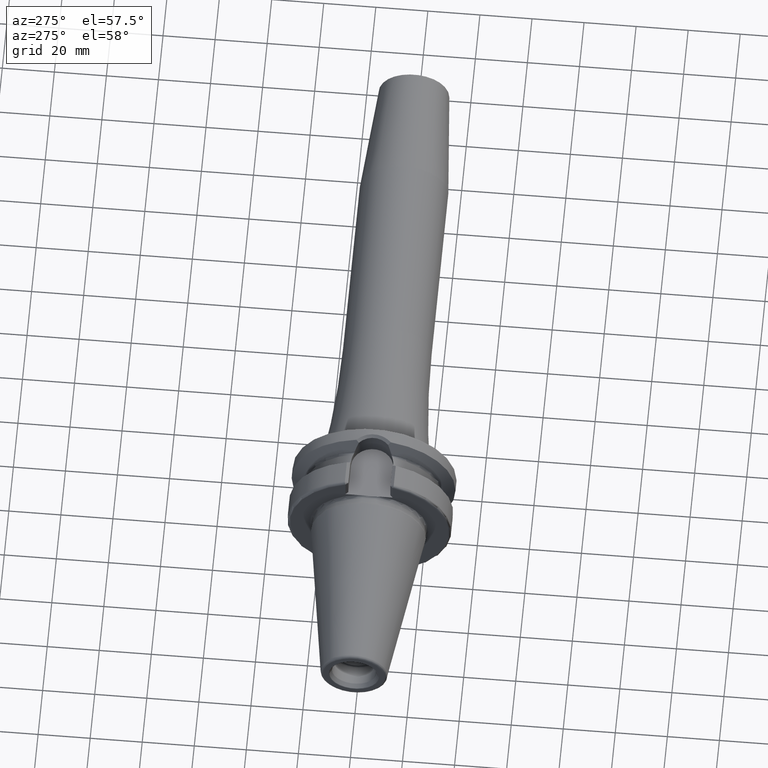
[diagram: clean part render]
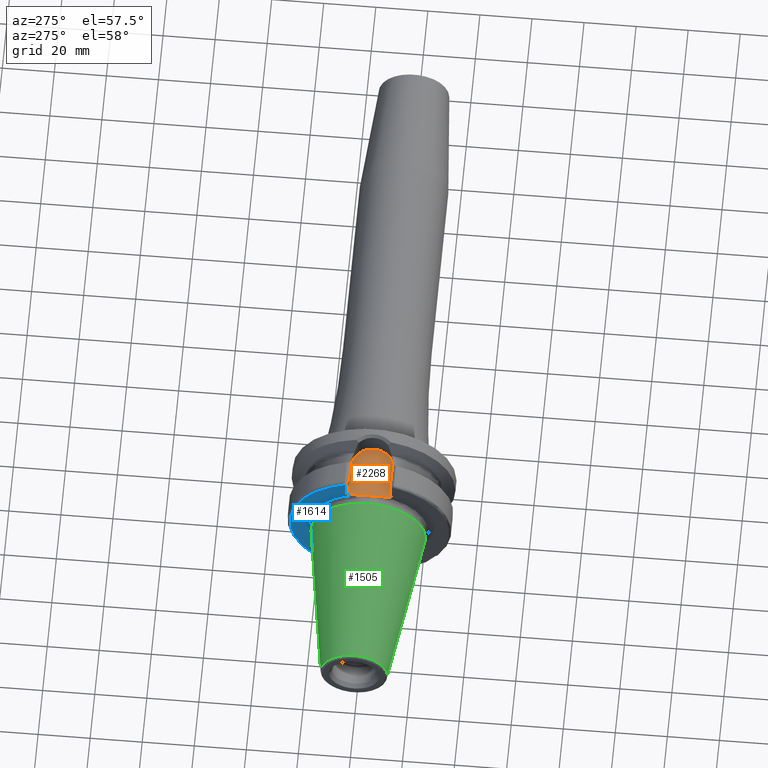
[diagram: same view with three faces highlighted in distinct colors, each labeled with its STEP entity id]
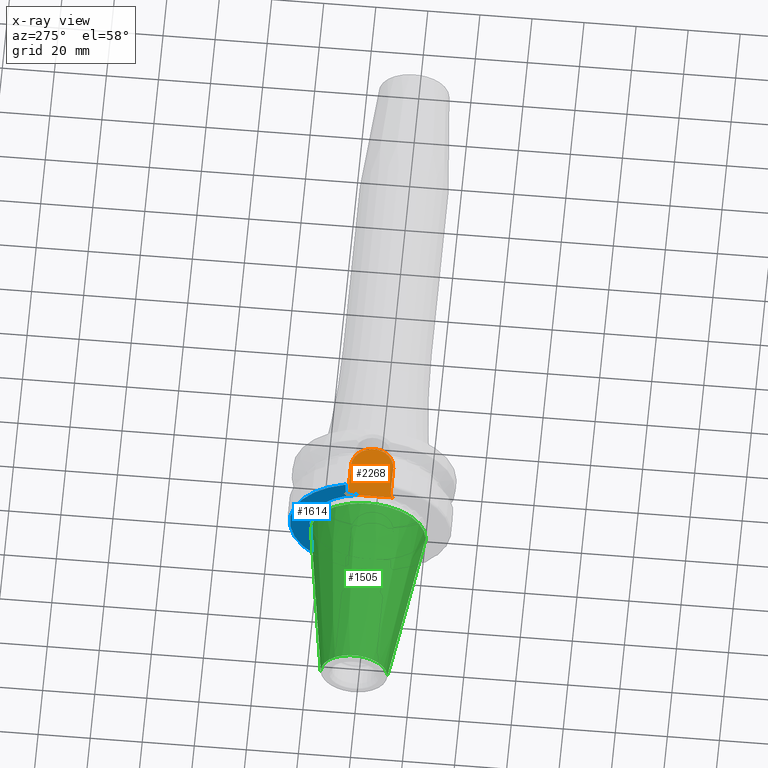
[diagram: x-ray of the same camera — body ghosted, the three highlighted faces saturated]
A machine part, auxiliary view with three faces highlighted in distinct colors.
The next image is the same camera in x-ray (body ghosted, the three faces saturated) — at least one of them is partly hidden behind the body in this view.
Their STEP definitions:

[orange] entity #2268 — the highlighted planar face has unit normal (0, 0, 1).
#680=DIRECTION('',(1.E0,0.E0,0.E0));
#681=VECTOR('',#680,1.2155E1);
#682=CARTESIAN_POINT('',(3.E0,-8.095E0,2.245E1));
#683=LINE('',#682,#681);
#684=DIRECTION('',(0.E0,1.E0,0.E0));
#685=VECTOR('',#684,4.706022328605E0);
#686=CARTESIAN_POINT('',(2.E0,-9.095E0,2.245E1));
#687=LINE('',#686,#685);
#688=DIRECTION('',(0.E0,1.E0,0.E0));
#689=VECTOR('',#688,4.706022328605E0);
#690=CARTESIAN_POINT('',(2.E0,4.388977671395E0,2.245E1));
#691=LINE('',#690,#689);
#692=DIRECTION('',(-1.E0,0.E0,0.E0));
#693=VECTOR('',#692,1.2155E1);
#694=CARTESIAN_POINT('',(1.5155E1,8.095E0,2.245E1));
#695=LINE('',#694,#693);
#696=CARTESIAN_POINT('',(1.5155E1,0.E0,2.245E1));
#697=DIRECTION('',(0.E0,0.E0,1.E0));
#698=DIRECTION('',(0.E0,-1.E0,0.E0));
#699=AXIS2_PLACEMENT_3D('',#696,#697,#698);
#705=DIRECTION('',(7.071067811865E-1,7.071067811865E-1,0.E0));
#706=VECTOR('',#705,1.414213562373E0);
#707=CARTESIAN_POINT('',(2.E0,-9.095E0,2.245E1));
#708=LINE('',#707,#706);
#714=CARTESIAN_POINT('',(2.E0,-4.388977671395E0,2.245E1));
#715=CARTESIAN_POINT('',(2.E0,-3.970864393558E0,2.245E1));
#716=CARTESIAN_POINT('',(1.981114905487E0,-3.134790252725E0,2.245E1));
#717=CARTESIAN_POINT('',(1.935909306649E0,-1.881114481277E0,2.245E1));
#718=CARTESIAN_POINT('',(1.903922826077E0,-6.271978192649E-1,2.245E1));
#719=CARTESIAN_POINT('',(1.903921553166E0,6.271174205746E-1,2.245E1));
#720=CARTESIAN_POINT('',(1.935907277499E0,1.881058976319E0,2.245E1));
#721=CARTESIAN_POINT('',(1.981114329557E0,3.134769380755E0,2.245E1));
#722=CARTESIAN_POINT('',(2.E0,3.970858027314E0,2.245E1));
#723=CARTESIAN_POINT('',(2.E0,4.388977671395E0,2.245E1));
#730=DIRECTION('',(-7.071067811865E-1,7.071067811865E-1,0.E0));
#731=VECTOR('',#730,1.414213562373E0);
#732=CARTESIAN_POINT('',(3.E0,8.095E0,2.245E1));
#733=LINE('',#732,#731);
#1328=CARTESIAN_POINT('',(1.5155E1,-8.095E0,2.245E1));
#1329=CARTESIAN_POINT('',(1.5155E1,8.095E0,2.245E1));
#1330=VERTEX_POINT('',#1328);
#1331=VERTEX_POINT('',#1329);
#1332=CARTESIAN_POINT('',(2.E0,4.388977671395E0,2.245E1));
#1333=VERTEX_POINT('',#1332);
#1334=CARTESIAN_POINT('',(2.E0,-4.388977671395E0,2.245E1));
#1335=VERTEX_POINT('',#1334);
#1369=CARTESIAN_POINT('',(3.E0,-8.095E0,2.245E1));
#1371=VERTEX_POINT('',#1369);
#1373=CARTESIAN_POINT('',(2.E0,-9.095E0,2.245E1));
#1375=VERTEX_POINT('',#1373);
#1382=CARTESIAN_POINT('',(2.E0,9.095E0,2.245E1));
#1383=VERTEX_POINT('',#1382);
#1384=CARTESIAN_POINT('',(3.E0,8.095E0,2.245E1));
#1386=VERTEX_POINT('',#1384);
#2250=CARTESIAN_POINT('',(0.E0,0.E0,2.245E1));
#2251=DIRECTION('',(0.E0,0.E0,1.E0));
#2252=DIRECTION('',(1.E0,0.E0,0.E0));
#2253=AXIS2_PLACEMENT_3D('',#2250,#2251,#2252);
#2254=PLANE('',#2253);
#2255=ORIENTED_EDGE('',*,*,#2016,.F.);
#2257=ORIENTED_EDGE('',*,*,#2256,.F.);
#2258=ORIENTED_EDGE('',*,*,#1627,.T.);
#2260=ORIENTED_EDGE('',*,*,#2259,.T.);
#2261=ORIENTED_EDGE('',*,*,#1605,.T.);
#2263=ORIENTED_EDGE('',*,*,#2262,.F.);
#2264=ORIENTED_EDGE('',*,*,#2241,.F.);
#2265=ORIENTED_EDGE('',*,*,#1987,.F.);
#2266=EDGE_LOOP('',(#2255,#2257,#2258,#2260,#2261,#2263,#2264,#2265));
#2267=FACE_OUTER_BOUND('',#2266,.F.);
#2268=ADVANCED_FACE('',(#2267),#2254,.T.);
#700=CIRCLE('',#699,8.095E0);
#724=B_SPLINE_CURVE_WITH_KNOTS('',3,(#714,#715,#716,#717,#718,#719,#720,#721,
#722,#723),.UNSPECIFIED.,.F.,.F.,(4,1,1,1,1,1,1,4),(0.E0,1.428571428571E-1,
2.857142857143E-1,4.285714285714E-1,5.714285714286E-1,7.142857142857E-1,
8.571428571429E-1,1.E0),.UNSPECIFIED.);
#1605=EDGE_CURVE('',#1333,#1383,#691,.T.);
#1627=EDGE_CURVE('',#1375,#1335,#687,.T.);
#1987=EDGE_CURVE('',#1330,#1331,#700,.T.);
#2016=EDGE_CURVE('',#1371,#1330,#683,.T.);
#2241=EDGE_CURVE('',#1331,#1386,#695,.T.);
#2256=EDGE_CURVE('',#1375,#1371,#708,.T.);
#2259=EDGE_CURVE('',#1335,#1333,#724,.T.);
#2262=EDGE_CURVE('',#1386,#1383,#733,.T.);

[blue] entity #1614 — the highlighted planar face has unit normal (1, 0, 0).
#96=CARTESIAN_POINT('',(2.E0,0.E0,0.E0));
#97=DIRECTION('',(-1.E0,0.E0,0.E0));
#98=DIRECTION('',(0.E0,1.E0,0.E0));
#99=AXIS2_PLACEMENT_3D('',#96,#97,#98);
#127=DIRECTION('',(2.137863157138E-6,2.138092596513E-6,9.999999999954E-1));
#128=VECTOR('',#127,6.649288203884E0);
#129=CARTESIAN_POINT('',(1.999985784732E0,9.094985783206E0,-2.909928820385E1));
#130=LINE('',#129,#128);
#131=DIRECTION('',(-4.462834027332E-6,-4.463945839096E-6,9.999999999801E-1));
#132=VECTOR('',#131,6.649296399125E0);
#133=CARTESIAN_POINT('',(2.E0,9.095E0,2.245E1));
#134=LINE('',#133,#132);
#592=CARTESIAN_POINT('',(2.E0,0.E0,0.E0));
#593=DIRECTION('',(-1.E0,0.E0,0.E0));
#594=DIRECTION('',(0.E0,2.983190614061E-1,9.544662055839E-1));
#595=AXIS2_PLACEMENT_3D('',#592,#593,#594);
#688=DIRECTION('',(0.E0,1.E0,0.E0));
#689=VECTOR('',#688,4.706022328605E0);
#690=CARTESIAN_POINT('',(2.E0,4.388977671395E0,2.245E1));
#691=LINE('',#690,#689);
#709=CARTESIAN_POINT('',(2.E0,0.E0,0.E0));
#710=DIRECTION('',(1.E0,0.E0,0.E0));
#711=DIRECTION('',(0.E0,1.E0,0.E0));
#712=AXIS2_PLACEMENT_3D('',#709,#710,#711);
#746=DIRECTION('',(0.E0,-1.E0,0.E0));
#747=VECTOR('',#746,4.706022328605E0);
#748=CARTESIAN_POINT('',(2.E0,9.095E0,-2.245E1));
#749=LINE('',#748,#747);
#1262=CARTESIAN_POINT('',(2.E0,2.2875E1,0.E0));
#1264=VERTEX_POINT('',#1262);
#1332=CARTESIAN_POINT('',(2.E0,4.388977671395E0,2.245E1));
#1333=VERTEX_POINT('',#1332);
#1340=CARTESIAN_POINT('',(2.E0,4.388977671395E0,-2.245E1));
#1341=VERTEX_POINT('',#1340);
#1378=CARTESIAN_POINT('',(2.E0,9.095027762300E0,2.909928051090E1));
#1380=VERTEX_POINT('',#1378);
#1382=CARTESIAN_POINT('',(2.E0,9.095E0,2.245E1));
#1383=VERTEX_POINT('',#1382);
#1392=CARTESIAN_POINT('',(1.999985784732E0,9.094985783206E0,-2.909928820385E1));
#1393=CARTESIAN_POINT('',(2.E0,9.095E0,-2.245E1));
#1394=VERTEX_POINT('',#1392);
#1395=VERTEX_POINT('',#1393);
#1594=CARTESIAN_POINT('',(2.E0,0.E0,0.E0));
#1595=DIRECTION('',(1.E0,0.E0,0.E0));
#1596=DIRECTION('',(0.E0,-1.E0,0.E0));
#1597=AXIS2_PLACEMENT_3D('',#1594,#1595,#1596);
#1598=PLANE('',#1597);
#1600=ORIENTED_EDGE('',*,*,#1599,.F.);
#1602=ORIENTED_EDGE('',*,*,#1601,.F.);
#1604=ORIENTED_EDGE('',*,*,#1603,.F.);
#1606=ORIENTED_EDGE('',*,*,#1605,.F.);
#1608=ORIENTED_EDGE('',*,*,#1607,.F.);
#1609=ORIENTED_EDGE('',*,*,#1580,.T.);
#1611=ORIENTED_EDGE('',*,*,#1610,.F.);
#1612=EDGE_LOOP('',(#1600,#1602,#1604,#1606,#1608,#1609,#1611));
#1613=FACE_OUTER_BOUND('',#1612,.F.);
#1614=ADVANCED_FACE('',(#1613),#1598,.F.);
#100=CIRCLE('',#99,2.2875E1);
#596=CIRCLE('',#595,3.04875E1);
#713=CIRCLE('',#712,2.2875E1);
#1580=EDGE_CURVE('',#1264,#1341,#100,.T.);
#1599=EDGE_CURVE('',#1394,#1395,#130,.T.);
#1601=EDGE_CURVE('',#1380,#1394,#596,.T.);
#1603=EDGE_CURVE('',#1383,#1380,#134,.T.);
#1605=EDGE_CURVE('',#1333,#1383,#691,.T.);
#1607=EDGE_CURVE('',#1264,#1333,#713,.T.);
#1610=EDGE_CURVE('',#1395,#1341,#749,.T.);

[green] entity #1505 — the highlighted conical surface has half-angle 8.298 deg.
#37=CARTESIAN_POINT('',(-6.454431866917E1,0.E0,0.E0));
#38=DIRECTION('',(1.E0,0.E0,0.E0));
#39=DIRECTION('',(0.E0,1.E0,0.E0));
#40=AXIS2_PLACEMENT_3D('',#37,#38,#39);
#42=CARTESIAN_POINT('',(-1.266732031557E0,0.E0,0.E0));
#43=DIRECTION('',(1.E0,0.E0,0.E0));
#44=DIRECTION('',(0.E0,1.E0,0.E0));
#45=AXIS2_PLACEMENT_3D('',#42,#43,#44);
#47=DIRECTION('',(-9.895312636440E-1,-1.443186691705E-1,0.E0));
#48=VECTOR('',#47,6.394703124850E1);
#49=CARTESIAN_POINT('',(-1.266732031557E0,2.204025284980E1,0.E0));
#50=LINE('',#49,#48);
#51=DIRECTION('',(-9.895312636440E-1,1.443186691705E-1,0.E0));
#52=VECTOR('',#51,6.394703124850E1);
#53=CARTESIAN_POINT('',(-1.266732031557E0,-2.204025284980E1,0.E0));
#54=LINE('',#53,#52);
#1190=CARTESIAN_POINT('',(-6.454431866917E1,1.281150240261E1,0.E0));
#1192=VERTEX_POINT('',#1190);
#1194=CARTESIAN_POINT('',(-6.454431866917E1,-1.281150240261E1,0.E0));
#1196=VERTEX_POINT('',#1194);
#1409=CARTESIAN_POINT('',(-1.266732031557E0,2.204025284980E1,0.E0));
#1410=VERTEX_POINT('',#1409);
#1411=CARTESIAN_POINT('',(-1.266732031557E0,-2.204025284980E1,0.E0));
#1412=VERTEX_POINT('',#1411);
#1491=CARTESIAN_POINT('',(-3.290552535036E1,0.E0,0.E0));
#1492=DIRECTION('',(1.E0,0.E0,0.E0));
#1493=DIRECTION('',(0.E0,-1.E0,0.E0));
#1494=AXIS2_PLACEMENT_3D('',#1491,#1492,#1493);
#1495=CONICAL_SURFACE('',#1494,1.742587762621E1,8.297826828206E0);
#1497=ORIENTED_EDGE('',*,*,#1496,.F.);
#1499=ORIENTED_EDGE('',*,*,#1498,.T.);
#1501=ORIENTED_EDGE('',*,*,#1500,.T.);
#1502=ORIENTED_EDGE('',*,*,#1484,.F.);
#1503=EDGE_LOOP('',(#1497,#1499,#1501,#1502));
#1504=FACE_OUTER_BOUND('',#1503,.F.);
#1505=ADVANCED_FACE('',(#1504),#1495,.T.);
#41=CIRCLE('',#40,1.281150240261E1);
#46=CIRCLE('',#45,2.204025284980E1);
#1484=EDGE_CURVE('',#1192,#1196,#41,.T.);
#1496=EDGE_CURVE('',#1410,#1192,#50,.T.);
#1498=EDGE_CURVE('',#1410,#1412,#46,.T.);
#1500=EDGE_CURVE('',#1412,#1196,#54,.T.);